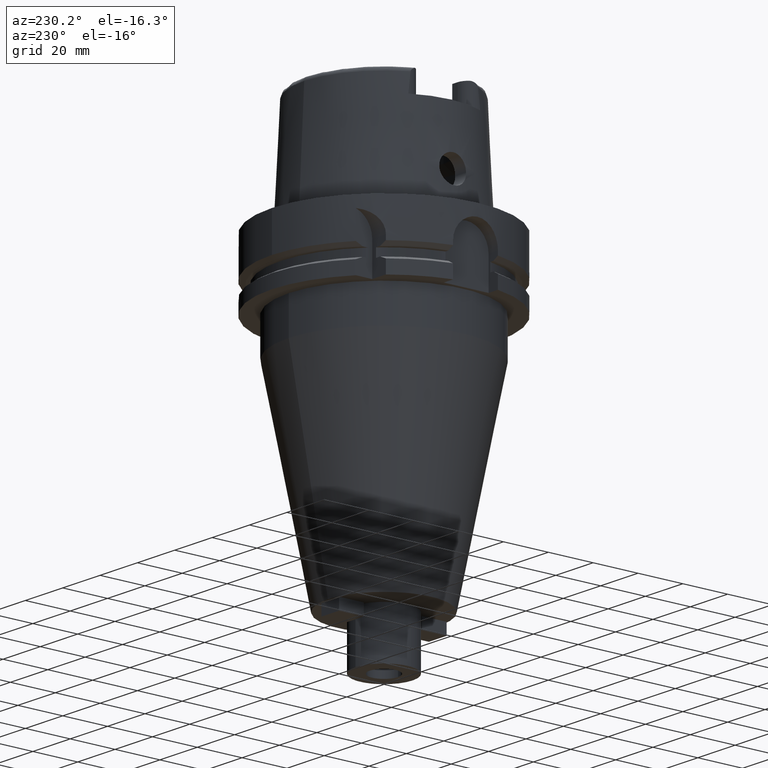
[diagram: clean part render]
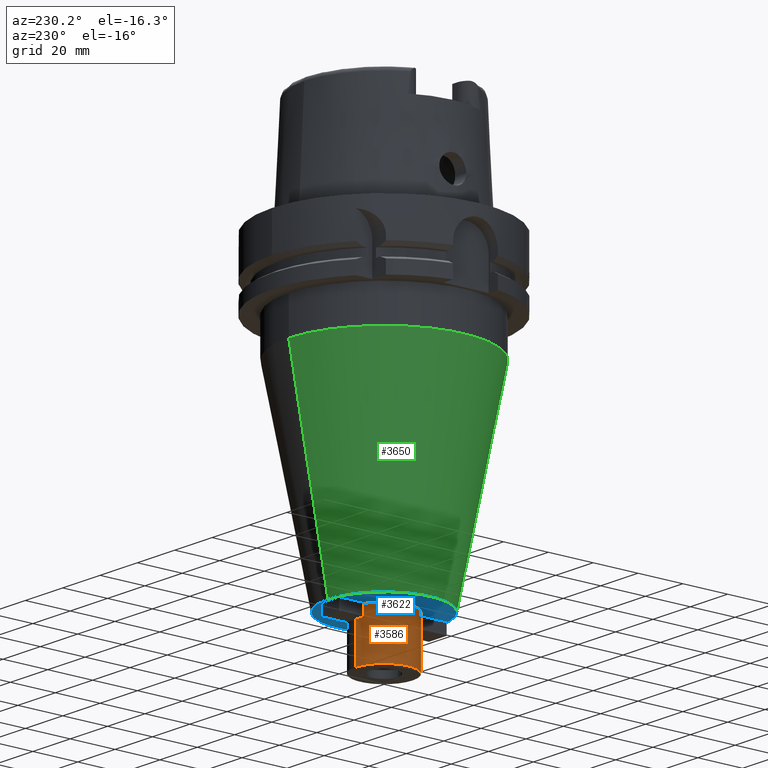
[diagram: same view with three faces highlighted in distinct colors, each labeled with its STEP entity id]
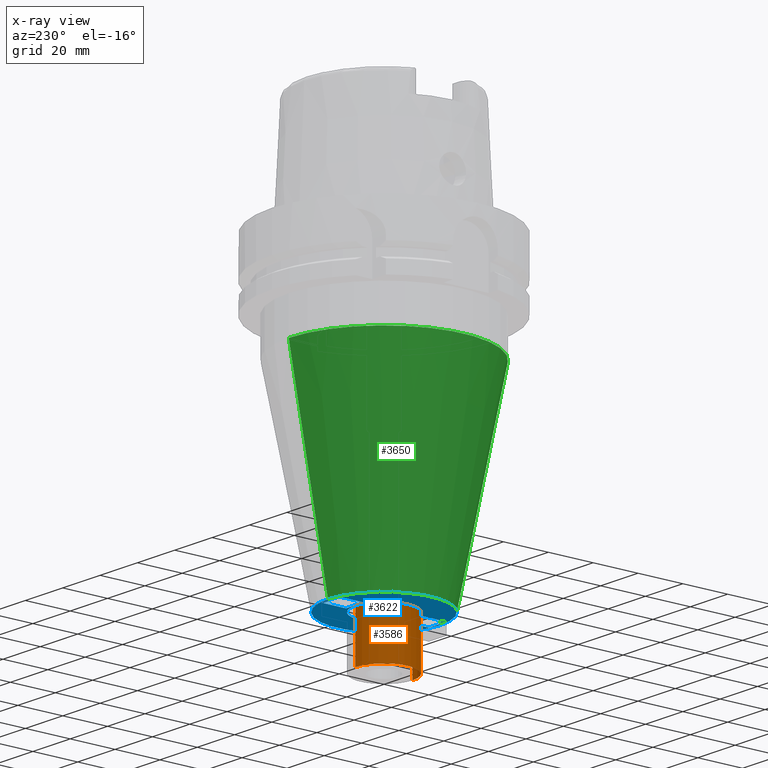
[diagram: x-ray of the same camera — body ghosted, the three highlighted faces saturated]
A machine part, auxiliary view with three faces highlighted in distinct colors.
The next image is the same camera in x-ray (body ghosted, the three faces saturated) — at least one of them is partly hidden behind the body in this view.
Their STEP definitions:

[orange] entity #3586 — the highlighted cylindrical surface (partial cylindrical patch) has radius 12.7 mm, axis along (0, 0, 1).
#1097=CARTESIAN_POINT('',(0.E0,0.E0,-1.57E2));
#1098=DIRECTION('',(0.E0,0.E0,1.E0));
#1099=DIRECTION('',(0.E0,1.E0,0.E0));
#1100=AXIS2_PLACEMENT_3D('',#1097,#1098,#1099);
#1121=DIRECTION('',(0.E0,0.E0,-1.E0));
#1122=VECTOR('',#1121,2.2E1);
#1123=CARTESIAN_POINT('',(0.E0,1.27E1,-1.35E2));
#1124=LINE('',#1123,#1122);
#1128=DIRECTION('',(0.E0,0.E0,-1.E0));
#1129=VECTOR('',#1128,2.2E1);
#1130=CARTESIAN_POINT('',(0.E0,-1.27E1,-1.35E2));
#1131=LINE('',#1130,#1129);
#1151=CARTESIAN_POINT('',(0.E0,0.E0,-1.35E2));
#1152=DIRECTION('',(0.E0,0.E0,-1.E0));
#1153=DIRECTION('',(0.E0,-1.E0,0.E0));
#1154=AXIS2_PLACEMENT_3D('',#1151,#1152,#1153);
#2564=CARTESIAN_POINT('',(0.E0,-1.27E1,-1.57E2));
#2565=CARTESIAN_POINT('',(0.E0,1.27E1,-1.57E2));
#2566=VERTEX_POINT('',#2564);
#2567=VERTEX_POINT('',#2565);
#2568=CARTESIAN_POINT('',(0.E0,1.27E1,-1.35E2));
#2569=VERTEX_POINT('',#2568);
#2570=CARTESIAN_POINT('',(0.E0,-1.27E1,-1.35E2));
#2571=VERTEX_POINT('',#2570);
#3574=CARTESIAN_POINT('',(0.E0,0.E0,-1.6735E2));
#3575=DIRECTION('',(0.E0,0.E0,1.E0));
#3576=DIRECTION('',(0.E0,1.E0,0.E0));
#3577=AXIS2_PLACEMENT_3D('',#3574,#3575,#3576);
#3578=CYLINDRICAL_SURFACE('',#3577,1.27E1);
#3579=ORIENTED_EDGE('',*,*,#3564,.F.);
#3581=ORIENTED_EDGE('',*,*,#3580,.F.);
#3582=ORIENTED_EDGE('',*,*,#3567,.T.);
#3583=ORIENTED_EDGE('',*,*,#3550,.F.);
#3584=EDGE_LOOP('',(#3579,#3581,#3582,#3583));
#3585=FACE_OUTER_BOUND('',#3584,.F.);
#1101=CIRCLE('',#1100,1.27E1);
#1155=CIRCLE('',#1154,1.27E1);
#3550=EDGE_CURVE('',#2567,#2566,#1101,.T.);
#3564=EDGE_CURVE('',#2569,#2567,#1124,.T.);
#3567=EDGE_CURVE('',#2571,#2566,#1131,.T.);
#3580=EDGE_CURVE('',#2571,#2569,#1155,.T.);
#3586=ADVANCED_FACE('',(#3585),#3578,.T.);

[blue] entity #3622 — the highlighted planar face has unit normal (0, 0, 1).
#1135=CARTESIAN_POINT('',(0.E0,0.E0,-1.35E2));
#1136=DIRECTION('',(0.E0,0.E0,1.E0));
#1137=DIRECTION('',(0.E0,-1.E0,0.E0));
#1138=AXIS2_PLACEMENT_3D('',#1135,#1136,#1137);
#1143=CARTESIAN_POINT('',(0.E0,0.E0,-1.35E2));
#1144=DIRECTION('',(0.E0,0.E0,1.E0));
#1145=DIRECTION('',(0.E0,1.E0,0.E0));
#1146=AXIS2_PLACEMENT_3D('',#1143,#1144,#1145);
#1151=CARTESIAN_POINT('',(0.E0,0.E0,-1.35E2));
#1152=DIRECTION('',(0.E0,0.E0,-1.E0));
#1153=DIRECTION('',(0.E0,-1.E0,0.E0));
#1154=AXIS2_PLACEMENT_3D('',#1151,#1152,#1153);
#1159=CARTESIAN_POINT('',(0.E0,0.E0,-1.35E2));
#1160=DIRECTION('',(0.E0,0.E0,-1.E0));
#1161=DIRECTION('',(0.E0,1.E0,0.E0));
#1162=AXIS2_PLACEMENT_3D('',#1159,#1160,#1161);
#1167=DIRECTION('',(0.E0,1.E0,0.E0));
#1168=VECTOR('',#1167,1.1E1);
#1169=CARTESIAN_POINT('',(-4.75E0,1.3E1,-1.35E2));
#1170=LINE('',#1169,#1168);
#1174=DIRECTION('',(-1.E0,0.E0,0.E0));
#1175=VECTOR('',#1174,9.5E0);
#1176=CARTESIAN_POINT('',(4.75E0,1.3E1,-1.35E2));
#1177=LINE('',#1176,#1175);
#1181=DIRECTION('',(0.E0,-1.E0,0.E0));
#1182=VECTOR('',#1181,1.1E1);
#1183=CARTESIAN_POINT('',(4.75E0,-1.3E1,-1.35E2));
#1184=LINE('',#1183,#1182);
#1188=DIRECTION('',(1.E0,0.E0,0.E0));
#1189=VECTOR('',#1188,9.5E0);
#1190=CARTESIAN_POINT('',(-4.75E0,-1.3E1,-1.35E2));
#1191=LINE('',#1190,#1189);
#2189=DIRECTION('',(0.E0,1.E0,0.E0));
#2190=VECTOR('',#2189,1.1E1);
#2191=CARTESIAN_POINT('',(4.75E0,1.3E1,-1.35E2));
#2192=LINE('',#2191,#2190);
#2217=DIRECTION('',(-1.E0,0.E0,0.E0));
#2218=VECTOR('',#2217,9.5E0);
#2219=CARTESIAN_POINT('',(4.75E0,2.4E1,-1.35E2));
#2220=LINE('',#2219,#2218);
#2259=DIRECTION('',(0.E0,-1.E0,0.E0));
#2260=VECTOR('',#2259,1.1E1);
#2261=CARTESIAN_POINT('',(-4.75E0,-1.3E1,-1.35E2));
#2262=LINE('',#2261,#2260);
#2287=DIRECTION('',(1.E0,0.E0,0.E0));
#2288=VECTOR('',#2287,9.5E0);
#2289=CARTESIAN_POINT('',(-4.75E0,-2.4E1,-1.35E2));
#2290=LINE('',#2289,#2288);
#2568=CARTESIAN_POINT('',(0.E0,1.27E1,-1.35E2));
#2569=VERTEX_POINT('',#2568);
#2570=CARTESIAN_POINT('',(0.E0,-1.27E1,-1.35E2));
#2571=VERTEX_POINT('',#2570);
#2572=CARTESIAN_POINT('',(0.E0,-2.5E1,-1.35E2));
#2573=CARTESIAN_POINT('',(0.E0,2.5E1,-1.35E2));
#2574=VERTEX_POINT('',#2572);
#2575=VERTEX_POINT('',#2573);
#2576=CARTESIAN_POINT('',(-4.75E0,1.3E1,-1.35E2));
#2577=CARTESIAN_POINT('',(-4.75E0,2.4E1,-1.35E2));
#2578=VERTEX_POINT('',#2576);
#2579=VERTEX_POINT('',#2577);
#2580=CARTESIAN_POINT('',(4.75E0,2.4E1,-1.35E2));
#2581=VERTEX_POINT('',#2580);
#2582=CARTESIAN_POINT('',(4.75E0,1.3E1,-1.35E2));
#2583=VERTEX_POINT('',#2582);
#2584=CARTESIAN_POINT('',(4.75E0,-1.3E1,-1.35E2));
#2585=CARTESIAN_POINT('',(4.75E0,-2.4E1,-1.35E2));
#2586=VERTEX_POINT('',#2584);
#2587=VERTEX_POINT('',#2585);
#2588=CARTESIAN_POINT('',(-4.75E0,-2.4E1,-1.35E2));
#2589=VERTEX_POINT('',#2588);
#2590=CARTESIAN_POINT('',(-4.75E0,-1.3E1,-1.35E2));
#2591=VERTEX_POINT('',#2590);
#3587=CARTESIAN_POINT('',(0.E0,0.E0,-1.35E2));
#3588=DIRECTION('',(0.E0,0.E0,1.E0));
#3589=DIRECTION('',(0.E0,1.E0,0.E0));
#3590=AXIS2_PLACEMENT_3D('',#3587,#3588,#3589);
#3591=PLANE('',#3590);
#3593=ORIENTED_EDGE('',*,*,#3592,.T.);
#3595=ORIENTED_EDGE('',*,*,#3594,.T.);
#3596=EDGE_LOOP('',(#3593,#3595));
#3597=FACE_OUTER_BOUND('',#3596,.F.);
#3598=ORIENTED_EDGE('',*,*,#3580,.T.);
#3599=ORIENTED_EDGE('',*,*,#3569,.T.);
#3600=EDGE_LOOP('',(#3598,#3599));
#3601=FACE_BOUND('',#3600,.F.);
#3603=ORIENTED_EDGE('',*,*,#3602,.T.);
#3605=ORIENTED_EDGE('',*,*,#3604,.F.);
#3607=ORIENTED_EDGE('',*,*,#3606,.F.);
#3609=ORIENTED_EDGE('',*,*,#3608,.T.);
#3610=EDGE_LOOP('',(#3603,#3605,#3607,#3609));
#3611=FACE_BOUND('',#3610,.F.);
#3613=ORIENTED_EDGE('',*,*,#3612,.T.);
#3615=ORIENTED_EDGE('',*,*,#3614,.F.);
#3617=ORIENTED_EDGE('',*,*,#3616,.F.);
#3619=ORIENTED_EDGE('',*,*,#3618,.T.);
#3620=EDGE_LOOP('',(#3613,#3615,#3617,#3619));
#3621=FACE_BOUND('',#3620,.F.);
#1139=CIRCLE('',#1138,2.5E1);
#1147=CIRCLE('',#1146,2.5E1);
#1155=CIRCLE('',#1154,1.27E1);
#1163=CIRCLE('',#1162,1.27E1);
#3569=EDGE_CURVE('',#2569,#2571,#1163,.T.);
#3580=EDGE_CURVE('',#2571,#2569,#1155,.T.);
#3592=EDGE_CURVE('',#2574,#2575,#1139,.T.);
#3594=EDGE_CURVE('',#2575,#2574,#1147,.T.);
#3602=EDGE_CURVE('',#2578,#2579,#1170,.T.);
#3604=EDGE_CURVE('',#2581,#2579,#2220,.T.);
#3606=EDGE_CURVE('',#2583,#2581,#2192,.T.);
#3608=EDGE_CURVE('',#2583,#2578,#1177,.T.);
#3612=EDGE_CURVE('',#2586,#2587,#1184,.T.);
#3614=EDGE_CURVE('',#2589,#2587,#2290,.T.);
#3616=EDGE_CURVE('',#2591,#2589,#2262,.T.);
#3618=EDGE_CURVE('',#2591,#2586,#1191,.T.);
#3622=ADVANCED_FACE('',(#3597,#3601,#3611,#3621),#3591,.F.);

[green] entity #3650 — the highlighted conical surface has half-angle 11.004 deg.
#1143=CARTESIAN_POINT('',(0.E0,0.E0,-1.35E2));
#1144=DIRECTION('',(0.E0,0.E0,1.E0));
#1145=DIRECTION('',(0.E0,1.E0,0.E0));
#1146=AXIS2_PLACEMENT_3D('',#1143,#1144,#1145);
#1195=DIRECTION('',(0.E0,-1.908696591022E-1,-9.816153896686E-1));
#1196=VECTOR('',#1195,9.168560410446E1);
#1197=CARTESIAN_POINT('',(0.E0,4.25E1,-4.5E1));
#1198=LINE('',#1197,#1196);
#1210=CARTESIAN_POINT('',(0.E0,0.E0,-4.5E1));
#1211=DIRECTION('',(0.E0,0.E0,1.E0));
#1212=DIRECTION('',(0.E0,1.E0,0.E0));
#1213=AXIS2_PLACEMENT_3D('',#1210,#1211,#1212);
#1218=DIRECTION('',(0.E0,1.908696591022E-1,-9.816153896686E-1));
#1219=VECTOR('',#1218,9.168560410446E1);
#1220=CARTESIAN_POINT('',(0.E0,-4.25E1,-4.5E1));
#1221=LINE('',#1220,#1219);
#2572=CARTESIAN_POINT('',(0.E0,-2.5E1,-1.35E2));
#2573=CARTESIAN_POINT('',(0.E0,2.5E1,-1.35E2));
#2574=VERTEX_POINT('',#2572);
#2575=VERTEX_POINT('',#2573);
#2592=CARTESIAN_POINT('',(0.E0,4.25E1,-4.5E1));
#2593=VERTEX_POINT('',#2592);
#2594=CARTESIAN_POINT('',(0.E0,-4.25E1,-4.5E1));
#2595=VERTEX_POINT('',#2594);
#3638=CARTESIAN_POINT('',(0.E0,0.E0,-9.E1));
#3639=DIRECTION('',(0.E0,0.E0,1.E0));
#3640=DIRECTION('',(0.E0,1.E0,0.E0));
#3641=AXIS2_PLACEMENT_3D('',#3638,#3639,#3640);
#3642=CONICAL_SURFACE('',#3641,3.375E1,1.100354085175E1);
#3643=ORIENTED_EDGE('',*,*,#3628,.F.);
#3645=ORIENTED_EDGE('',*,*,#3644,.T.);
#3646=ORIENTED_EDGE('',*,*,#3631,.T.);
#3647=ORIENTED_EDGE('',*,*,#3594,.F.);
#3648=EDGE_LOOP('',(#3643,#3645,#3646,#3647));
#3649=FACE_OUTER_BOUND('',#3648,.F.);
#1147=CIRCLE('',#1146,2.5E1);
#1214=CIRCLE('',#1213,4.25E1);
#3594=EDGE_CURVE('',#2575,#2574,#1147,.T.);
#3628=EDGE_CURVE('',#2593,#2575,#1198,.T.);
#3631=EDGE_CURVE('',#2595,#2574,#1221,.T.);
#3644=EDGE_CURVE('',#2593,#2595,#1214,.T.);
#3650=ADVANCED_FACE('',(#3649),#3642,.T.);